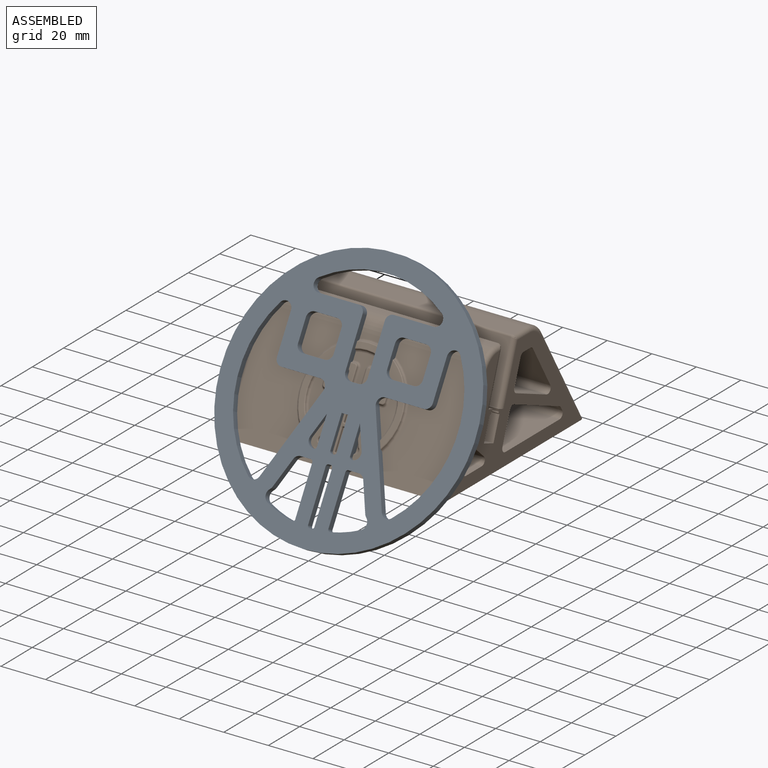
[diagram: assembled view]
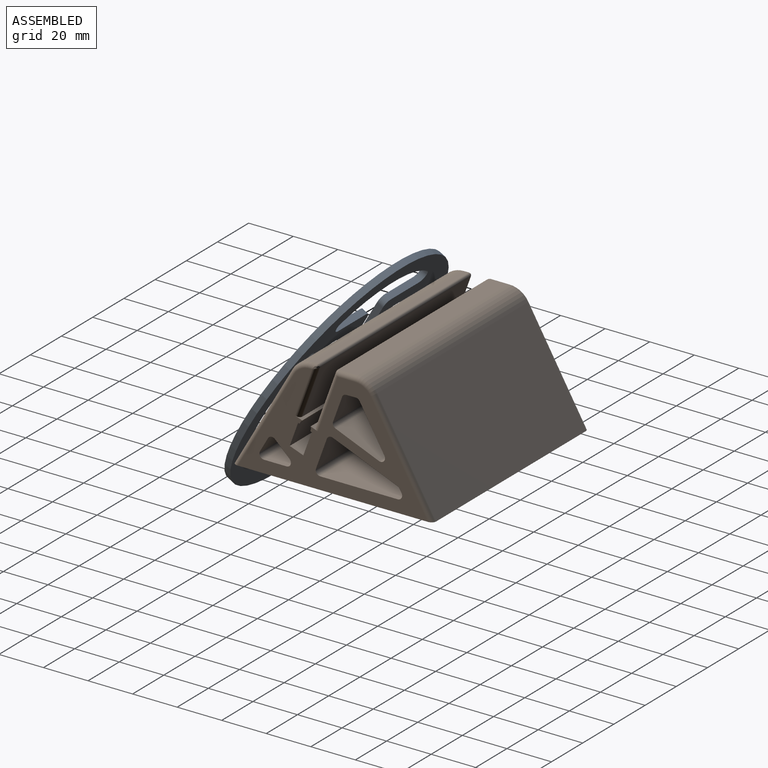
[diagram: assembled view, second angle]
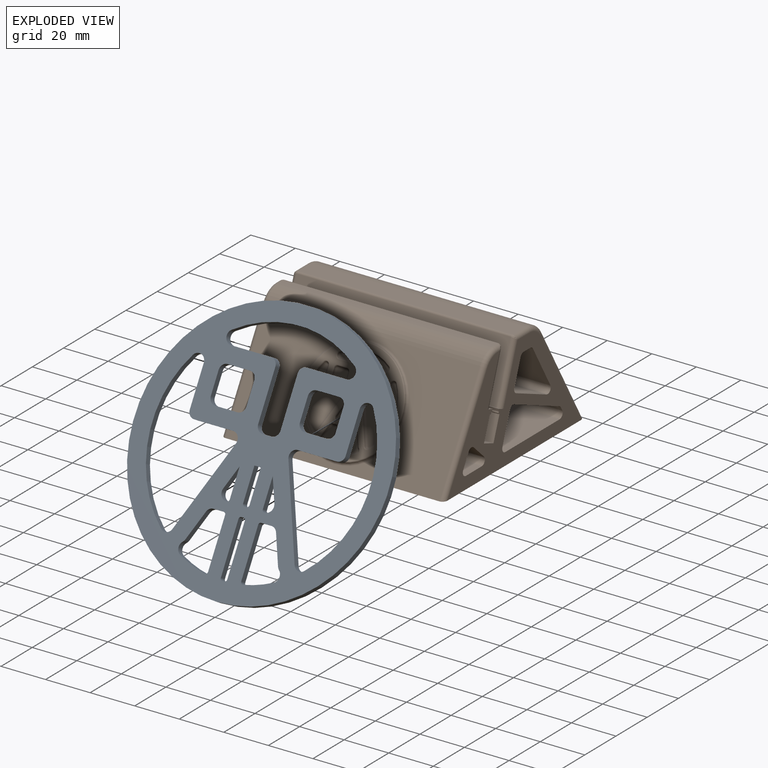
[diagram: exploded view]
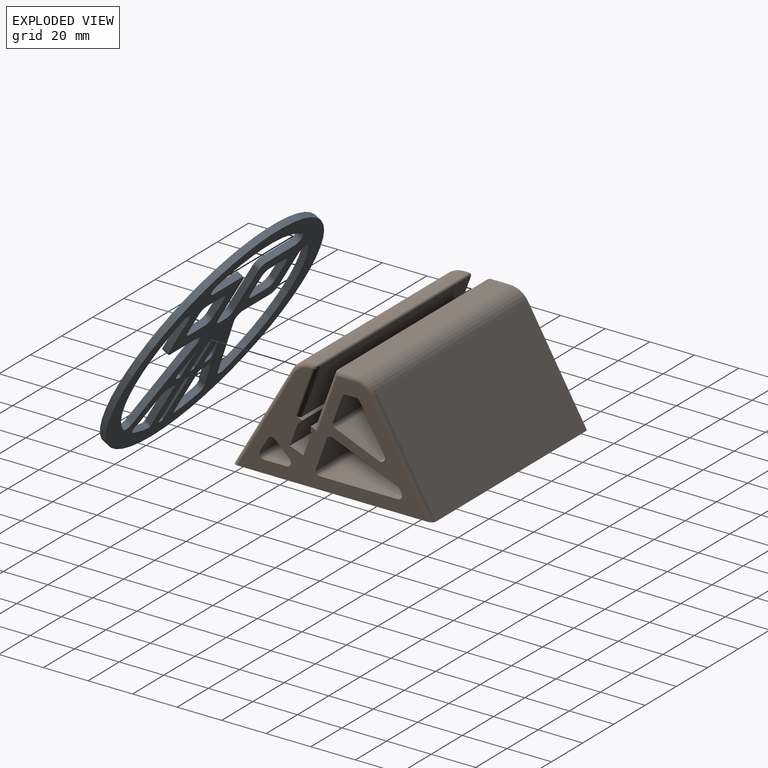
[diagram: exploded view, second angle]
ASSEMBLY  parts=2 mates=2
PART A: 89 faces, bbox 114x3x114 mm
  f0: cylinder r=3mm len=3mm, axis (0,-1,0), area 4.2mm2, adj f1,f86,f87,f88
  f1: cylinder r=3mm len=5.01mm, axis (0,-1,0), area 18mm2, adj f0,f2,f87,f88
  f2: cylinder r=49mm len=12.34mm, axis (0,-1,0), area 39mm2, adj f1,f3,f87,f88
  f3: cylinder r=1mm len=3mm, axis (0,-1,0), area 5.2mm2, adj f2,f4,f87,f88
  f4: plane 21.75x3mm, normal (-1,0,0), area 65.3mm2, adj f3,f5,f87,f88
  f5: cylinder r=1mm len=3mm, axis (0,-1,0), area 4.7mm2, adj f4,f6,f87,f88
  f6: plane 4.54x3mm, normal (0,0,-1), area 13.6mm2, adj f5,f7,f87,f88
  f7: cylinder r=3mm len=3mm, axis (0,-1,0), area 10.5mm2, adj f6,f86,f87,f88
  f8: plane 12.68x3mm, normal (-1,0,0), area 38mm2, adj f9,f75,f87,f88
  f9: plane 9.5x4.04mm, normal (0.92,0,-0.39), area 31mm2, adj f8,f10,f87,f88
  f10: cylinder r=3mm len=4.18mm, axis (0,-1,0), area 17.8mm2, adj f9,f11,f87,f88
  f11: plane 3x0.28mm, normal (0,0,1), area 0.9mm2, adj f10,f75,f87,f88
  f12: plane 10x3mm, normal (-1,0,0), area 30mm2, adj f13,f76,f87,f88
  f13: cylinder r=3mm len=3mm, axis (0,-1,0), area 14.1mm2, adj f12,f14,f87,f88
  f14: plane 10x3mm, normal (0,0,-1), area 30mm2, adj f13,f15,f87,f88
  f15: cylinder r=3mm len=3mm, axis (0,-1,0), area 14.1mm2, adj f14,f16,f87,f88
  f16: plane 10x3mm, normal (1,0,0), area 30mm2, adj f15,f17,f87,f88
  f17: cylinder r=3mm len=3mm, axis (0,-1,0), area 14.1mm2, adj f16,f18,f87,f88
  f18: plane 10x3mm, normal (0,0,1), area 30mm2, adj f17,f76,f87,f88
  f19: cylinder r=3mm len=3mm, axis (0,-1,0), area 14.1mm2, adj f20,f78,f87,f88
  f20: plane 10x3mm, normal (-1,0,0), area 30mm2, adj f19,f21,f87,f88
  f21: cylinder r=3mm len=3mm, axis (0,-1,0), area 14.1mm2, adj f20,f22,f87,f88
  f22: plane 10x3mm, normal (0,0,-1), area 30mm2, adj f21,f23,f87,f88
  f23: cylinder r=3mm len=3mm, axis (0,-1,0), area 14.1mm2, adj f22,f24,f87,f88
  f24: plane 10x3mm, normal (1,0,0), area 30mm2, adj f23,f25,f87,f88
  f25: cylinder r=3mm len=3mm, axis (0,-1,0), area 14.1mm2, adj f24,f78,f87,f88
  f26: plane 3x2.85mm, normal (0,0,-1), area 8.6mm2, adj f27,f79,f87,f88
  f27: plane 14.5x3mm, normal (1,0,0), area 43.5mm2, adj f26,f28,f87,f88
  f28: cylinder r=1mm len=3mm, axis (0,-1,0), area 4.7mm2, adj f27,f29,f87,f88
  f29: plane 3x0.85mm, normal (0,0,1), area 2.6mm2, adj f28,f30,f87,f88
  f30: cylinder r=1mm len=3mm, axis (0,-1,0), area 4.7mm2, adj f29,f79,f87,f88
  f31: plane 9.5x4.04mm, normal (-0.92,0,-0.39), area 31mm2, adj f32,f80,f87,f88
  f32: plane 12.68x3mm, normal (1,0,0), area 38mm2, adj f31,f33,f87,f88
  f33: cylinder r=1mm len=3mm, axis (0,-1,0), area 4.7mm2, adj f32,f34,f87,f88
  f34: plane 3x0.28mm, normal (0,0,1), area 0.9mm2, adj f33,f80,f87,f88
  f35: cylinder r=1mm len=3mm, axis (0,-1,0), area 4.7mm2, adj f36,f81,f87,f88
  f36: plane 22.5x3mm, normal (1,0,0), area 67.5mm2, adj f35,f37,f87,f88
  f37: cylinder r=1mm len=3mm, axis (0,-1,0), area 4.7mm2, adj f36,f38,f87,f88
  f38: cylinder r=49mm len=3mm, axis (0,-1,0), area 2.6mm2, adj f37,f39,f87,f88
  f39: cylinder r=1mm len=3mm, axis (0,-1,0), area 4.7mm2, adj f38,f40,f87,f88
  f40: plane 22.5x3mm, normal (-1,0,0), area 67.5mm2, adj f39,f41,f87,f88
  f41: cylinder r=1mm len=3mm, axis (0,-1,0), area 4.7mm2, adj f40,f81,f87,f88
  f42: cylinder r=3mm len=3mm, axis (0,-1,0), area 14.1mm2, adj f43,f82,f87,f88
  f43: plane 17.92x3mm, normal (0,0,1), area 53.8mm2, adj f42,f44,f87,f88
  f44: cylinder r=3mm len=5.48mm, axis (0,-1,0), area 22.9mm2, adj f43,f45,f87,f88
  f45: cylinder r=49mm len=55.23mm, axis (0,-1,0), area 176mm2, adj f44,f46,f87,f88
  f46: cylinder r=3mm len=5.48mm, axis (0,-1,0), area 22.9mm2, adj f45,f47,f87,f88
  f47: plane 17.92x3mm, normal (0,0,1), area 53.8mm2, adj f46,f48,f87,f88
  f48: cylinder r=3mm len=3mm, axis (0,-1,0), area 14.1mm2, adj f47,f49,f87,f88
  f49: plane 22x3mm, normal (1,0,0), area 66mm2, adj f48,f50,f87,f88
  f50: cylinder r=3mm len=3mm, axis (0,-1,0), area 14.1mm2, adj f49,f51,f87,f88
  f51: plane 4x3mm, normal (0,0,1), area 12mm2, adj f50,f52,f87,f88
  f52: cylinder r=3mm len=3mm, axis (0,-1,0), area 14.1mm2, adj f51,f82,f87,f88
  f53: cylinder r=1mm len=3mm, axis (0,-1,0), area 4.7mm2, adj f54,f83,f87,f88
  f54: plane 21.75x3mm, normal (1,0,0), area 65.3mm2, adj f53,f55,f87,f88
  f55: cylinder r=1mm len=3mm, axis (0,-1,0), area 5.2mm2, adj f54,f56,f87,f88
  f56: cylinder r=49mm len=12.34mm, axis (0,-1,0), area 39mm2, adj f55,f57,f87,f88
  f57: cylinder r=3mm len=5.01mm, axis (0,-1,0), area 18mm2, adj f56,f58,f87,f88
  f58: cylinder r=3mm len=3mm, axis (0,-1,0), area 4.2mm2, adj f57,f59,f87,f88
  f59: plane 11.85x5.04mm, normal (-0.92,0,-0.39), area 38.6mm2, adj f58,f60,f87,f88
  f60: cylinder r=3mm len=3mm, axis (0,-1,0), area 10.5mm2, adj f59,f83,f87,f88
  f61: cylinder r=3mm len=4.18mm, axis (0,-1,0), area 17.8mm2, adj f62,f84,f87,f88
  f62: plane 36.72x15.63mm, normal (0.92,0,0.39), area 119.7mm2, adj f61,f63,f87,f88
  f63: cylinder r=3mm len=4.73mm, axis (0,-1,0), area 17mm2, adj f62,f64,f87,f88
  f64: cylinder r=49mm len=64.6mm, axis (0,-1,0), area 213.8mm2, adj f63,f65,f87,f88
  f65: cylinder r=3mm len=5.48mm, axis (0,-1,0), area 22.9mm2, adj f64,f66,f87,f88
  f66: plane 17.92x3mm, normal (1,0,0), area 53.8mm2, adj f65,f67,f87,f88
  f67: cylinder r=3mm len=3mm, axis (0,-1,0), area 14.1mm2, adj f66,f84,f87,f88
  f68: plane 17.92x3mm, normal (-1,0,0), area 53.8mm2, adj f69,f85,f87,f88
  f69: cylinder r=3mm len=5.48mm, axis (0,-1,0), area 22.9mm2, adj f68,f70,f87,f88
  f70: cylinder r=49mm len=64.6mm, axis (0,-1,0), area 213.8mm2, adj f69,f71,f87,f88
  f71: cylinder r=3mm len=4.73mm, axis (0,-1,0), area 17mm2, adj f70,f72,f87,f88
  f72: plane 36.72x15.63mm, normal (-0.92,0,0.39), area 119.7mm2, adj f71,f73,f87,f88
  f73: cylinder r=3mm len=4.18mm, axis (0,-1,0), area 17.8mm2, adj f72,f74,f87,f88
  f74: plane 17.46x3mm, normal (0,0,-1), area 52.4mm2, adj f73,f85,f87,f88
  f75: cylinder r=1mm len=3mm, axis (0,-1,0), area 4.7mm2, adj f8,f11,f87,f88
  f76: cylinder r=3mm len=3mm, axis (0,-1,0), area 14.1mm2, adj f12,f18,f87,f88
  f77: cylinder r=57mm len=114mm, axis (0,-1,0), area 1074.4mm2, adj f87,f88
  f78: plane 10x3mm, normal (0,0,1), area 30mm2, adj f19,f25,f87,f88
  f79: plane 14.5x3mm, normal (-1,0,0), area 43.5mm2, adj f26,f30,f87,f88
  f80: cylinder r=3mm len=4.18mm, axis (0,-1,0), area 17.8mm2, adj f31,f34,f87,f88
  f81: plane 3x0.85mm, normal (0,0,-1), area 2.6mm2, adj f35,f41,f87,f88
  f82: plane 22x3mm, normal (-1,0,0), area 66mm2, adj f42,f52,f87,f88
  f83: plane 4.54x3mm, normal (0,0,-1), area 13.6mm2, adj f53,f60,f87,f88
  f84: plane 17.46x3mm, normal (0,0,-1), area 52.4mm2, adj f61,f67,f87,f88
  f85: cylinder r=3mm len=3mm, axis (0,-1,0), area 14.1mm2, adj f68,f74,f87,f88
  f86: plane 11.85x5.04mm, normal (0.92,0,-0.39), area 38.6mm2, adj f0,f7,f87,f88
  f87: plane 114x114mm, normal (0,1,0), area 5458.4mm2, adj f0,f1,f2,f3,f4,f5,f6,f7
  f88: plane 114x114mm, normal (0,-1,0), area 5458.4mm2, adj f0,f1,f2,f3,f4,f5,f6,f7
PART B: 284 faces, bbox 100.5x91x52.3 mm
  f0: plane 61x0.39mm, normal (0,0.94,-0.34), area 25.2mm2, adj f3,f20,f23,f279
  f1: plane 61x0.45mm, normal (0,-0.94,0.34), area 29.1mm2, adj f3,f20,f24,f278
  f2: plane 100x10.15mm, normal (0,0.34,0.94), area 439.4mm2, adj f3,f4,f14,f15,f20,f21,f22,f29
  f3: plane 85.37x48mm, normal (1,0,0), area 1595mm2, adj f0,f1,f2,f9,f16,f17,f18,f19
  f4: plane 96x22.15mm, normal (0,0.94,-0.34), area 2262.9mm2, adj f2,f5,f34,f44
  f5: cylinder r=1mm len=96mm, axis (-1,0,0), area 184.3mm2, adj f4,f6,f33,f43
  f6: plane 96x2.48mm, normal (0,0,1), area 238.2mm2, adj f5,f7,f32,f42
  f7: cylinder r=10mm len=96mm, axis (-1,0,0), area 1005.3mm2, adj f6,f8,f31,f41
  f8: plane 96x45mm, normal (0,-0.87,0.5), area 3208.8mm2, adj f7,f9,f30,f40,f104
  f9: plane 100.49x90.49mm, normal (0,0,-1), area 8996mm2, adj f3,f8,f10,f15,f25,f30,f35,f40
  f10: plane 96x45.04mm, normal (0,0.86,0.5), area 5008.3mm2, adj f9,f11,f25,f35
  f11: cylinder r=10mm len=96mm, axis (-1,0,0), area 1000.3mm2, adj f10,f12,f26,f36
  f12: plane 96x8.56mm, normal (0,0,1), area 821.8mm2, adj f11,f13,f27,f37
  f13: cylinder r=1mm len=96mm, axis (-1,0,0), area 117.3mm2, adj f12,f14,f28,f38
  f14: plane 96x25.16mm, normal (0,-0.94,0.34), area 2570.4mm2, adj f2,f13,f29,f39
  f15: plane 85.37x48mm, normal (-1,0,0), area 1676.1mm2, adj f2,f9,f25,f26,f27,f29,f30,f31
  f16: plane 65x6.11mm, normal (0,-0.34,-0.94), area 53.5mm2, adj f3,f17,f19,f45,f278,f279,f280
  f17: plane 65x10.34mm, normal (0,0.94,-0.34), area 715mm2, adj f3,f16,f18,f45
  f18: plane 65x6.11mm, normal (0,0.34,0.94), area 422.5mm2, adj f3,f17,f19,f45
  f19: plane 65x10.34mm, normal (0,-0.94,0.34), area 715mm2, adj f3,f16,f18,f45
  f20: plane 4.87x2.95mm, normal (1,0,0), area 7mm2, adj f0,f1,f2,f21,f22,f23,f24,f280
  f21: plane 61x0.82mm, normal (0,0.71,-0.71), area 70.4mm2, adj f2,f3,f20,f23
  f22: plane 61x1.09mm, normal (0,-0.99,-0.11), area 66.8mm2, adj f2,f3,f20,f24
  f23: cylinder r=0.1mm len=61mm, axis (1,0,0), area 2.7mm2, adj f0,f3,f20,f21
  f24: cylinder r=0.1mm len=61mm, axis (-1,0,0), area 2.8mm2, adj f1,f3,f20,f22
  f25: cylinder r=2mm len=46.05mm, axis (0,-0.5,0.86), area 162.1mm2, adj f9,f10,f15,f26
  f26: torus R=8mm, axis (1,0,0), area 30.4mm2, adj f11,f15,f25,f27
  f27: cylinder r=2mm len=8.56mm, axis (0,-1,0), area 25.8mm2, adj f12,f15,f26,f28
  f28: bspline ~2.08x2mm, area 1.6mm2, adj f13,f27,f29
  f29: cylinder r=2mm len=25.84mm, axis (0,-0.34,-0.94), area 83mm2, adj f2,f14,f15,f28
  f30: cylinder r=2mm len=46mm, axis (0,-0.5,-0.87), area 161.4mm2, adj f8,f9,f15,f31
  f31: torus R=8mm, axis (1,0,0), area 30.5mm2, adj f7,f15,f30,f32
  f32: cylinder r=2mm len=2.48mm, axis (0,-1,0), area 5.6mm2, adj f6,f15,f31,f33
  f33: bspline ~2.86x2.13mm, area 2.8mm2, adj f5,f32,f34
  f34: cylinder r=2mm len=22.83mm, axis (0,0.34,0.94), area 71.8mm2, adj f2,f4,f15,f33
  f35: cylinder r=2mm len=46.05mm, axis (0,0.5,-0.86), area 162.1mm2, adj f3,f9,f10,f36
  f36: torus R=8mm, axis (1,0,0), area 30.4mm2, adj f3,f11,f35,f37
  f37: cylinder r=2mm len=8.56mm, axis (0,1,0), area 25.8mm2, adj f3,f12,f36,f38
  f38: bspline ~2.08x2mm, area 1.6mm2, adj f13,f37,f39
  f39: cylinder r=2mm len=25.84mm, axis (0,0.34,0.94), area 83mm2, adj f2,f3,f14,f38
  f40: cylinder r=2mm len=46mm, axis (0,0.5,0.87), area 161.4mm2, adj f3,f8,f9,f41
  f41: torus R=8mm, axis (1,0,0), area 30.5mm2, adj f3,f7,f40,f42
  f42: cylinder r=2mm len=2.48mm, axis (0,1,0), area 5.6mm2, adj f3,f6,f41,f43
  f43: bspline ~2.86x2.13mm, area 2.8mm2, adj f5,f42,f44
  f44: cylinder r=2mm len=22.83mm, axis (0,-0.34,-0.94), area 71.8mm2, adj f2,f3,f4,f43
  f45: plane 12.56x9.87mm, normal (1,0,0), area 71.5mm2, adj f16,f17,f18,f19
  f46: plane 100x4.25mm, normal (0,0,-1), area 424.8mm2, adj f3,f15,f64,f67
  f47: plane 100x11.12mm, normal (0,0.94,-0.34), area 1183.1mm2, adj f3,f15,f66,f67
  f48: plane 100x19.42mm, normal (0,0.38,0.93), area 2098.1mm2, adj f3,f15,f65,f66
  f49: plane 100x19.05mm, normal (0,-0.86,-0.5), area 2206.2mm2, adj f3,f15,f64,f65
  f50: plane 100x29.06mm, normal (0,-0.38,-0.93), area 3138.7mm2, adj f3,f15,f60,f63
  f51: plane 100x13.33mm, normal (0,0.94,-0.34), area 1418.4mm2, adj f3,f15,f60,f61
  f52: plane 100x34.76mm, normal (0,0,1), area 3476.4mm2, adj f3,f15,f61,f62
  f53: plane 100x1.46mm, normal (0,-0.86,-0.5), area 169.4mm2, adj f3,f15,f62,f63
  f54: plane 100x6.55mm, normal (0,-0.69,-0.73), area 902.8mm2, adj f3,f15,f57,f59
  f55: plane 100x6.21mm, normal (0,0.87,-0.5), area 717mm2, adj f3,f15,f58,f59
  f56: plane 100x10.14mm, normal (0,0,1), area 1013.9mm2, adj f3,f15,f57,f58
  f57: cylinder r=2mm len=100mm, axis (-1,0,0), area 476.6mm2, adj f3,f15,f54,f56
  f58: cylinder r=2mm len=100mm, axis (-1,0,0), area 418.9mm2, adj f3,f15,f55,f56
  f59: cylinder r=2mm len=100mm, axis (-1,0,0), area 361.1mm2, adj f3,f15,f54,f55
  f60: cylinder r=2mm len=100mm, axis (-1,0,0), area 321.9mm2, adj f3,f15,f50,f51
  f61: cylinder r=2mm len=100mm, axis (-1,0,0), area 384mm2, adj f3,f15,f51,f52
  f62: cylinder r=2mm len=100mm, axis (-1,0,0), area 419.9mm2, adj f3,f15,f52,f53
  f63: cylinder r=2mm len=100mm, axis (-1,0,0), area 130.9mm2, adj f3,f15,f50,f53
  f64: cylinder r=2mm len=100mm, axis (-1,0,0), area 208.4mm2, adj f3,f15,f46,f49
  f65: cylinder r=2mm len=100mm, axis (-1,0,0), area 497.4mm2, adj f3,f15,f48,f49
  f66: cylinder r=2mm len=100mm, axis (-1,0,0), area 306.4mm2, adj f3,f15,f47,f48
  f67: cylinder r=2mm len=100mm, axis (-1,0,0), area 244.3mm2, adj f3,f15,f46,f47
  f68: cylinder r=0.4mm len=0.45mm, axis (0,-0.87,0.5), area 0.1mm2, adj f69,f91,f167,f194
  f69: plane 0.17x0.11mm, normal (0,0.5,0.87), area 0mm2, adj f68,f80,f168,f195
  f70: plane 5.12x3.07mm, normal (-1,0,0), area 1.2mm2, adj f71,f88,f185,f197
  f71: cylinder r=0.4mm len=0.45mm, axis (0,-0.87,0.5), area 0.1mm2, adj f70,f72,f183,f196
  f72: plane 0.34x0.17mm, normal (0,0.5,0.87), area 0.1mm2, adj f71,f89,f181,f198
  f73: cylinder r=1.2mm len=1.55mm, axis (0,-0.87,0.5), area 0.5mm2, adj f74,f85,f189,f202
  f74: plane 0.17x0.11mm, normal (0,0.5,0.87), area 0mm2, adj f73,f86,f187,f203
  f75: plane 0.34x0.17mm, normal (0,-0.5,-0.87), area 0.1mm2, adj f76,f82,f176,f236
  f76: cylinder r=0.4mm len=0.45mm, axis (0,-0.87,0.5), area 0.1mm2, adj f75,f77,f178,f238
  f77: plane 7.89x4.67mm, normal (-1,0,0), area 1.8mm2, adj f76,f78,f179,f240
  f78: cylinder r=0.4mm len=0.45mm, axis (0,-0.87,0.5), area 0.1mm2, adj f77,f79,f177,f242
  f79: cylinder r=19.6mm len=0.35mm, axis (0,-0.87,0.5), area 0.1mm2, adj f78,f83,f175,f243
  f80: cylinder r=1.2mm len=1.55mm, axis (0,-0.87,0.5), area 0.5mm2, adj f69,f92,f170,f193
  f81: plane 44.66x38.68mm, normal (0,-0.87,0.5), area 622.5mm2, adj f191,f192,f193,f194,f195,f196,f197,f198
  f82: cylinder r=0.4mm len=0.45mm, axis (0,-0.87,0.5), area 0.1mm2, adj f75,f84,f174,f237
  f83: cylinder r=0.4mm len=0.45mm, axis (0,-0.87,0.5), area 0.1mm2, adj f79,f84,f173,f241
  f84: plane 7.89x4.67mm, normal (1,0,0), area 1.8mm2, adj f82,f83,f172,f239
  f85: plane 3.39x2.07mm, normal (-0.92,-0.2,-0.34), area 0.8mm2, adj f73,f87,f190,f204
  f86: cylinder r=0.4mm len=0.45mm, axis (0,-0.87,0.5), area 0.1mm2, adj f74,f87,f186,f205
  f87: plane 4.49x2.71mm, normal (1,0,0), area 1mm2, adj f85,f86,f188,f206
  f88: plane 1.14x0.17mm, normal (0,-0.5,-0.87), area 0.2mm2, adj f70,f90,f184,f199
  f89: cylinder r=0.4mm len=0.45mm, axis (0,-0.87,0.5), area 0.1mm2, adj f72,f90,f180,f200
  f90: plane 5.12x3.07mm, normal (1,0,0), area 1.2mm2, adj f88,f89,f182,f201
  f91: plane 4.49x2.71mm, normal (-1,0,0), area 1mm2, adj f68,f92,f169,f192
  f92: plane 3.39x2.07mm, normal (0.92,-0.2,-0.34), area 0.8mm2, adj f80,f91,f171,f191
  f93: plane 2.18x1.26mm, normal (0,-0.87,0.5), area 1.1mm2, adj f168,f169,f170,f171
  f94: plane 4.4x3.81mm, normal (0,-0.87,0.5), area 19.3mm2, adj f150,f151,f152,f153,f154,f155,f156,f157
  f95: plane 4.4x3.81mm, normal (0,-0.87,0.5), area 19.3mm2, adj f105,f106,f107,f108,f109,f110,f111,f112
  f96: plane 4.5x2.6mm, normal (0,-0.87,0.5), area 0.7mm2, adj f181,f182,f184,f185
  f97: plane 2.18x1.26mm, normal (0,-0.87,0.5), area 1.1mm2, adj f187,f188,f189,f190
  f98: plane 7.62x4.4mm, normal (0,-0.87,0.5), area 1.2mm2, adj f172,f175,f176,f179
  f99: plane 21.14x12.82mm, normal (0,-0.87,0.5), area 78.2mm2, adj f138,f139,f140,f141,f142,f143,f144,f145
  f100: plane 6.38x4.09mm, normal (0,-0.87,0.5), area 19mm2, adj f129,f130,f131,f133,f134,f135,f137
  f101: plane 21.36x12.99mm, normal (0,-0.87,0.5), area 145.5mm2, adj f121,f122,f123,f124,f125,f126,f127,f128
  f102: plane 21.36x12.99mm, normal (0,-0.87,0.5), area 145.5mm2, adj f113,f114,f115,f116,f117,f118,f119,f120
  f103: plane 6.38x4.09mm, normal (0,-0.87,0.5), area 19mm2, adj f158,f159,f160,f161,f162,f163,f166
  f104: torus R=23.8mm, axis (0,-0.87,0.5), area 199.8mm2, adj f8,f261
  f105: cylinder r=1mm len=3.86mm, axis (0,0.5,0.87), area 5.5mm2, adj f95,f106,f107,f262
  f106: torus R=0.2mm, axis (0,-0.87,0.5), area 1.7mm2, adj f95,f105,f108,f264
  f107: torus R=0.2mm, axis (0,-0.87,0.5), area 1.7mm2, adj f95,f105,f109,f263
  f108: cylinder r=1mm len=4mm, axis (-1,0,0), area 5.5mm2, adj f95,f106,f110,f266
  f109: cylinder r=1mm len=4mm, axis (1,0,0), area 5.5mm2, adj f95,f107,f111,f265
  f110: torus R=0.2mm, axis (0,-0.87,0.5), area 1.7mm2, adj f95,f108,f112,f268
  f111: torus R=0.2mm, axis (0,-0.87,0.5), area 1.7mm2, adj f95,f109,f112,f267
  f112: cylinder r=1mm len=3.86mm, axis (0,-0.5,-0.87), area 5.5mm2, adj f95,f110,f111,f269
  f113: cylinder r=1mm len=6.61mm, axis (0,-0.5,-0.87), area 9.8mm2, adj f102,f114,f115,f275
  f114: torus R=0.2mm, axis (0,-0.87,0.5), area 2.7mm2, adj f102,f113,f116,f277
  f115: torus R=2.2mm, axis (0,-0.87,0.5), area 3.5mm2, adj f102,f113,f117,f273
  f116: torus R=18.6mm, axis (0,-0.87,0.5), area 38.2mm2, adj f102,f114,f118,f276
  f117: cylinder r=1mm len=6.99mm, axis (1,0,0), area 9.6mm2, adj f102,f115,f119,f271
  f118: torus R=0.2mm, axis (0,-0.87,0.5), area 2mm2, adj f102,f116,f120,f274
  f119: torus R=0.2mm, axis (0,-0.87,0.5), area 2.1mm2, adj f102,f117,f120,f270
  f120: cylinder r=1mm len=12.89mm, axis (-0.39,-0.46,-0.8), area 21.9mm2, adj f102,f118,f119,f272
  f121: torus R=0.2mm, axis (0,-0.87,0.5), area 2.7mm2, adj f101,f122,f123,f213
  f122: cylinder r=1mm len=6.61mm, axis (0,0.5,0.87), area 9.8mm2, adj f101,f121,f124,f211
  f123: torus R=18.6mm, axis (0,-0.87,0.5), area 38.2mm2, adj f101,f121,f125,f214
  f124: torus R=2.2mm, axis (0,-0.87,0.5), area 3.5mm2, adj f101,f122,f126,f209
  f125: torus R=0.2mm, axis (0,-0.87,0.5), area 2mm2, adj f101,f123,f127,f212
  f126: cylinder r=1mm len=6.99mm, axis (1,0,0), area 9.6mm2, adj f101,f124,f128,f207
  f127: cylinder r=1mm len=12.89mm, axis (-0.39,0.46,0.8), area 21.9mm2, adj f101,f125,f128,f210
  f128: torus R=0.2mm, axis (0,-0.87,0.5), area 2.1mm2, adj f101,f126,f127,f208
  f129: torus R=0.2mm, axis (0,-0.87,0.5), area 2.1mm2, adj f100,f130,f131,f222
  f130: torus R=18.6mm, axis (0,-0.87,0.5), area 6.5mm2, adj f100,f129,f132,f223
  f131: torus R=2.2mm, axis (0,-0.87,0.5), area 1mm2, adj f100,f129,f133,f220
  f132: bspline ~1.35x1mm, area 0.4mm2, adj f130,f134,f221
  f133: cylinder r=1mm len=4.84mm, axis (0.39,-0.46,-0.8), area 7.1mm2, adj f100,f131,f135,f218
  f134: cylinder r=1mm len=7.91mm, axis (0,0.5,0.87), area 11mm2, adj f100,f132,f136,f219
  f135: torus R=0.2mm, axis (0,-0.87,0.5), area 1.3mm2, adj f100,f133,f137,f216
  f136: bspline ~1.27x0.99mm, area 0.3mm2, adj f134,f137,f217
  f137: cylinder r=1mm len=1.8mm, axis (1,0,0), area 2.1mm2, adj f100,f135,f136,f215
  f138: cylinder r=1mm len=8.02mm, axis (0,-0.5,-0.87), area 12.1mm2, adj f99,f139,f140,f227
  f139: torus R=2.2mm, axis (0,-0.87,0.5), area 3.5mm2, adj f99,f138,f141,f229
  f140: torus R=0.2mm, axis (0,-0.87,0.5), area 1.7mm2, adj f99,f138,f142,f225
  f141: cylinder r=1mm len=7.17mm, axis (-1,0,0), area 9.8mm2, adj f99,f139,f143,f231
  f142: cylinder r=1mm len=1.6mm, axis (-1,0,0), area 2.2mm2, adj f99,f140,f144,f224
  f143: torus R=0.2mm, axis (0,-0.87,0.5), area 2.7mm2, adj f99,f141,f145,f233
  f144: torus R=0.2mm, axis (0,-0.87,0.5), area 1.7mm2, adj f99,f142,f146,f226
  f145: torus R=18.6mm, axis (0,-0.87,0.5), area 31.5mm2, adj f99,f143,f147,f235
  f146: cylinder r=1mm len=8.02mm, axis (0,0.5,0.87), area 12.1mm2, adj f99,f144,f148,f228
  f147: torus R=0.2mm, axis (0,-0.87,0.5), area 2.7mm2, adj f99,f145,f149,f234
  f148: torus R=2.2mm, axis (0,-0.87,0.5), area 3.5mm2, adj f99,f146,f149,f230
  f149: cylinder r=1mm len=7.17mm, axis (-1,0,0), area 9.8mm2, adj f99,f147,f148,f232
  f150: cylinder r=1mm len=4mm, axis (-1,0,0), area 5.5mm2, adj f94,f151,f152,f254
  f151: torus R=0.2mm, axis (0,-0.87,0.5), area 1.7mm2, adj f94,f150,f153,f256
  f152: torus R=0.2mm, axis (0,-0.87,0.5), area 1.7mm2, adj f94,f150,f154,f253
  f153: cylinder r=1mm len=3.86mm, axis (0,-0.5,-0.87), area 5.5mm2, adj f94,f151,f155,f258
  f154: cylinder r=1mm len=3.86mm, axis (0,0.5,0.87), area 5.5mm2, adj f94,f152,f156,f255
  f155: torus R=0.2mm, axis (0,-0.87,0.5), area 1.7mm2, adj f94,f153,f157,f260
  f156: torus R=0.2mm, axis (0,-0.87,0.5), area 1.7mm2, adj f94,f154,f157,f257
  f157: cylinder r=1mm len=4mm, axis (1,0,0), area 5.5mm2, adj f94,f155,f156,f259
  f158: torus R=2.2mm, axis (0,-0.87,0.5), area 1mm2, adj f103,f159,f160,f246
  f159: cylinder r=1mm len=4.84mm, axis (0.39,0.46,0.8), area 7.1mm2, adj f103,f158,f161,f248
  f160: torus R=0.2mm, axis (0,-0.87,0.5), area 2.1mm2, adj f103,f158,f162,f244
  f161: torus R=0.2mm, axis (0,-0.87,0.5), area 1.3mm2, adj f103,f159,f163,f250
  f162: torus R=18.6mm, axis (0,-0.87,0.5), area 6.5mm2, adj f103,f160,f164,f245
  f163: cylinder r=1mm len=1.8mm, axis (1,0,0), area 2.1mm2, adj f103,f161,f165,f252
  f164: bspline ~1.35x1mm, area 0.4mm2, adj f162,f166,f247
  f165: bspline ~1.27x0.99mm, area 0.3mm2, adj f163,f166,f251
  f166: cylinder r=1mm len=7.91mm, axis (0,-0.5,-0.87), area 11mm2, adj f103,f164,f165,f249
  f167: bspline ~0.78x0.5mm, area 0.2mm2, adj f68,f168,f169
  f168: cylinder r=0.5mm len=0.68mm, axis (-1,0,0), area 0.1mm2, adj f69,f93,f167,f170
  f169: cylinder r=0.5mm len=4.64mm, axis (0,-0.5,-0.87), area 3.2mm2, adj f91,f93,f167,f171
  f170: torus R=0.7mm, axis (0,-0.87,0.5), area 1.6mm2, adj f80,f93,f168,f171
  f171: cylinder r=0.5mm len=3.71mm, axis (0.39,0.46,0.8), area 2.5mm2, adj f92,f93,f169,f170
  f172: cylinder r=0.5mm len=8.04mm, axis (0,0.5,0.87), area 7mm2, adj f84,f98,f173,f174
  f173: bspline ~0.81x0.5mm, area 0.2mm2, adj f83,f172,f175
  f174: bspline ~0.73x0.53mm, area 0.2mm2, adj f82,f172,f176
  f175: torus R=19.1mm, axis (0,-0.87,0.5), area 0.2mm2, adj f79,f98,f173,f177
  f176: cylinder r=0.5mm len=0.68mm, axis (1,0,0), area 0.2mm2, adj f75,f98,f174,f178
  f177: bspline ~0.81x0.5mm, area 0.2mm2, adj f78,f175,f179
  f178: bspline ~0.73x0.53mm, area 0.2mm2, adj f76,f176,f179
  f179: cylinder r=0.5mm len=8.04mm, axis (0,-0.5,-0.87), area 7mm2, adj f77,f98,f177,f178
  f180: bspline ~0.78x0.5mm, area 0.2mm2, adj f89,f181,f182
  f181: cylinder r=0.5mm len=0.68mm, axis (-1,0,0), area 0.2mm2, adj f72,f96,f180,f183
  f182: cylinder r=0.5mm len=5.27mm, axis (0,0.5,0.87), area 4.3mm2, adj f90,f96,f180,f184
  f183: bspline ~0.78x0.5mm, area 0.2mm2, adj f71,f181,f185
  f184: cylinder r=0.5mm len=1.14mm, axis (1,0,0), area 0.6mm2, adj f88,f96,f182,f185
  f185: cylinder r=0.5mm len=5.27mm, axis (0,-0.5,-0.87), area 4.3mm2, adj f70,f96,f183,f184
  f186: bspline ~0.78x0.5mm, area 0.2mm2, adj f86,f187,f188
  f187: cylinder r=0.5mm len=0.68mm, axis (-1,0,0), area 0.1mm2, adj f74,f97,f186,f189
  f188: cylinder r=0.5mm len=4.64mm, axis (0,0.5,0.87), area 3.2mm2, adj f87,f97,f186,f190
  f189: torus R=0.7mm, axis (0,-0.87,0.5), area 1.6mm2, adj f73,f97,f187,f190
  f190: cylinder r=0.5mm len=3.71mm, axis (0.39,-0.46,-0.8), area 2.5mm2, adj f85,f97,f188,f189
  f191: cylinder r=0.5mm len=5.66mm, axis (-0.39,-0.46,-0.8), area 3.9mm2, adj f81,f92,f192,f193
  f192: cylinder r=0.5mm len=6.76mm, axis (0,0.5,0.87), area 4.7mm2, adj f81,f91,f191,f194
  f193: torus R=1.7mm, axis (0,0.87,-0.5), area 2.1mm2, adj f80,f81,f191,f195
  f194: torus R=0.9mm, axis (0,0.87,-0.5), area 0.7mm2, adj f68,f81,f192,f195
  f195: cylinder r=0.5mm len=0.68mm, axis (1,0,0), area 0.1mm2, adj f69,f81,f193,f194
  f196: torus R=0.9mm, axis (0,0.87,-0.5), area 0.7mm2, adj f71,f81,f197,f198
  f197: cylinder r=0.5mm len=5.71mm, axis (0,0.5,0.87), area 4.8mm2, adj f70,f81,f196,f199
  f198: cylinder r=0.5mm len=0.68mm, axis (1,0,0), area 0.3mm2, adj f72,f81,f196,f200
  f199: cylinder r=0.5mm len=2.14mm, axis (-1,0,0), area 1.3mm2, adj f81,f88,f197,f201
  f200: torus R=0.9mm, axis (0,0.87,-0.5), area 0.7mm2, adj f81,f89,f198,f201
  f201: cylinder r=0.5mm len=5.71mm, axis (0,-0.5,-0.87), area 4.8mm2, adj f81,f90,f199,f200
  f202: torus R=1.7mm, axis (0,0.87,-0.5), area 2.1mm2, adj f73,f81,f203,f204
  f203: cylinder r=0.5mm len=0.68mm, axis (1,0,0), area 0.1mm2, adj f74,f81,f202,f205
  f204: cylinder r=0.5mm len=5.66mm, axis (-0.39,0.46,0.8), area 3.9mm2, adj f81,f85,f202,f206
  f205: torus R=0.9mm, axis (0,0.87,-0.5), area 0.7mm2, adj f81,f86,f203,f206
  f206: cylinder r=0.5mm len=6.76mm, axis (0,-0.5,-0.87), area 4.7mm2, adj f81,f87,f204,f205
  f207: cylinder r=0.5mm len=6.99mm, axis (1,0,0), area 4.8mm2, adj f81,f126,f208,f209
  f208: torus R=1.67mm, axis (0,0.87,-0.5), area 1.9mm2, adj f81,f128,f207,f210
  f209: torus R=0.73mm, axis (0,-0.87,0.5), area 1.1mm2, adj f81,f124,f207,f211
  f210: cylinder r=0.5mm len=12.81mm, axis (-0.39,0.46,0.8), area 10.9mm2, adj f81,f127,f208,f212
  f211: cylinder r=0.5mm len=6.41mm, axis (0,0.5,0.87), area 4.9mm2, adj f81,f122,f209,f213
  f212: torus R=1.67mm, axis (0,0.87,-0.5), area 1.8mm2, adj f81,f125,f210,f214
  f213: torus R=1.67mm, axis (0,0.87,-0.5), area 2.4mm2, adj f81,f121,f211,f214
  f214: torus R=20.07mm, axis (0,0.87,-0.5), area 19.7mm2, adj f81,f123,f212,f213
  f215: cylinder r=0.5mm len=1.8mm, axis (1,0,0), area 1.2mm2, adj f81,f137,f216,f217
  f216: torus R=1.67mm, axis (0,0.87,-0.5), area 1.1mm2, adj f81,f135,f215,f218
  f217: bspline ~1.04x1.01mm, area 0.6mm2, adj f81,f136,f215,f219
  f218: cylinder r=0.5mm len=4.47mm, axis (0.39,-0.46,-0.8), area 3.5mm2, adj f81,f133,f216,f220
  f219: cylinder r=0.5mm len=7.71mm, axis (0,0.5,0.87), area 5.9mm2, adj f81,f134,f217,f221
  f220: torus R=0.73mm, axis (0,-0.87,0.5), area 0.3mm2, adj f81,f131,f218,f222
  f221: bspline ~1.2x0.93mm, area 0.7mm2, adj f81,f132,f219,f223
  f222: torus R=1.67mm, axis (0,0.87,-0.5), area 1.9mm2, adj f81,f129,f220,f223
  f223: torus R=20.07mm, axis (0,0.87,-0.5), area 3.6mm2, adj f81,f130,f221,f222
  f224: cylinder r=0.5mm len=1.6mm, axis (-1,0,0), area 1.1mm2, adj f81,f142,f225,f226
  f225: torus R=1.67mm, axis (0,0.87,-0.5), area 1.5mm2, adj f81,f140,f224,f227
  f226: torus R=1.67mm, axis (0,0.87,-0.5), area 1.5mm2, adj f81,f144,f224,f228
  f227: cylinder r=0.5mm len=7.82mm, axis (0,-0.5,-0.87), area 6mm2, adj f81,f138,f225,f229
  f228: cylinder r=0.5mm len=7.82mm, axis (0,0.5,0.87), area 6mm2, adj f81,f146,f226,f230
  f229: torus R=0.73mm, axis (0,-0.87,0.5), area 1.1mm2, adj f81,f139,f227,f231
  f230: torus R=0.73mm, axis (0,-0.87,0.5), area 1.1mm2, adj f81,f148,f228,f232
  f231: cylinder r=0.5mm len=7.17mm, axis (-1,0,0), area 4.9mm2, adj f81,f141,f229,f233
  f232: cylinder r=0.5mm len=7.17mm, axis (-1,0,0), area 4.9mm2, adj f81,f149,f230,f234
  f233: torus R=1.67mm, axis (0,0.87,-0.5), area 2.4mm2, adj f81,f143,f231,f235
  f234: torus R=1.67mm, axis (0,0.87,-0.5), area 2.4mm2, adj f81,f147,f232,f235
  f235: torus R=20.07mm, axis (0,0.87,-0.5), area 16.2mm2, adj f81,f145,f233,f234
  f236: cylinder r=0.5mm len=0.68mm, axis (-1,0,0), area 0.3mm2, adj f75,f81,f237,f238
  f237: torus R=0.9mm, axis (0,0.87,-0.5), area 0.7mm2, adj f81,f82,f236,f239
  f238: torus R=0.9mm, axis (0,0.87,-0.5), area 0.7mm2, adj f76,f81,f236,f240
  f239: cylinder r=0.5mm len=8.04mm, axis (0,-0.5,-0.87), area 7.1mm2, adj f81,f84,f237,f241
  f240: cylinder r=0.5mm len=8.04mm, axis (0,0.5,0.87), area 7.1mm2, adj f77,f81,f238,f242
  f241: torus R=0.9mm, axis (0,0.87,-0.5), area 0.7mm2, adj f81,f83,f239,f243
  f242: torus R=0.9mm, axis (0,0.87,-0.5), area 0.7mm2, adj f78,f81,f240,f243
  f243: torus R=20.1mm, axis (0,0.87,-0.5), area 0.3mm2, adj f79,f81,f241,f242
  f244: torus R=1.67mm, axis (0,0.87,-0.5), area 1.9mm2, adj f81,f160,f245,f246
  f245: torus R=20.07mm, axis (0,0.87,-0.5), area 3.6mm2, adj f81,f162,f244,f247
  f246: torus R=0.73mm, axis (0,-0.87,0.5), area 0.3mm2, adj f81,f158,f244,f248
  f247: bspline ~1.2x0.89mm, area 0.7mm2, adj f81,f164,f245,f249
  f248: cylinder r=0.5mm len=4.47mm, axis (0.39,0.46,0.8), area 3.5mm2, adj f81,f159,f246,f250
  f249: cylinder r=0.5mm len=7.71mm, axis (0,-0.5,-0.87), area 5.9mm2, adj f81,f166,f247,f251
  f250: torus R=1.67mm, axis (0,0.87,-0.5), area 1.1mm2, adj f81,f161,f248,f252
  f251: bspline ~1.03x0.98mm, area 0.6mm2, adj f81,f165,f249,f252
  f252: cylinder r=0.5mm len=1.8mm, axis (1,0,0), area 1.2mm2, adj f81,f163,f250,f251
  f253: torus R=1.67mm, axis (0,0.87,-0.5), area 1.5mm2, adj f81,f152,f254,f255
  f254: cylinder r=0.5mm len=4mm, axis (-1,0,0), area 2.7mm2, adj f81,f150,f253,f256
  f255: cylinder r=0.5mm len=3.66mm, axis (0,0.5,0.87), area 2.7mm2, adj f81,f154,f253,f257
  f256: torus R=1.67mm, axis (0,0.87,-0.5), area 1.5mm2, adj f81,f151,f254,f258
  f257: torus R=1.67mm, axis (0,0.87,-0.5), area 1.5mm2, adj f81,f156,f255,f259
  f258: cylinder r=0.5mm len=3.66mm, axis (0,-0.5,-0.87), area 2.7mm2, adj f81,f153,f256,f260
  f259: cylinder r=0.5mm len=4mm, axis (1,0,0), area 2.7mm2, adj f81,f157,f257,f260
  f260: torus R=1.67mm, axis (0,0.87,-0.5), area 1.5mm2, adj f81,f155,f258,f259
  f261: torus R=22.33mm, axis (0,-0.87,0.5), area 97.3mm2, adj f81,f104
  f262: cylinder r=0.5mm len=3.66mm, axis (0,0.5,0.87), area 2.7mm2, adj f81,f105,f263,f264
  f263: torus R=1.67mm, axis (0,0.87,-0.5), area 1.5mm2, adj f81,f107,f262,f265
  f264: torus R=1.67mm, axis (0,0.87,-0.5), area 1.5mm2, adj f81,f106,f262,f266
  f265: cylinder r=0.5mm len=4mm, axis (1,0,0), area 2.7mm2, adj f81,f109,f263,f267
  f266: cylinder r=0.5mm len=4mm, axis (-1,0,0), area 2.7mm2, adj f81,f108,f264,f268
  f267: torus R=1.67mm, axis (0,0.87,-0.5), area 1.5mm2, adj f81,f111,f265,f269
  f268: torus R=1.67mm, axis (0,0.87,-0.5), area 1.5mm2, adj f81,f110,f266,f269
  f269: cylinder r=0.5mm len=3.66mm, axis (0,-0.5,-0.87), area 2.7mm2, adj f81,f112,f267,f268
  f270: torus R=1.67mm, axis (0,0.87,-0.5), area 1.9mm2, adj f81,f119,f271,f272
  f271: cylinder r=0.5mm len=6.99mm, axis (1,0,0), area 4.8mm2, adj f81,f117,f270,f273
  f272: cylinder r=0.5mm len=12.81mm, axis (-0.39,-0.46,-0.8), area 10.9mm2, adj f81,f120,f270,f274
  f273: torus R=0.73mm, axis (0,-0.87,0.5), area 1.1mm2, adj f81,f115,f271,f275
  f274: torus R=1.67mm, axis (0,0.87,-0.5), area 1.8mm2, adj f81,f118,f272,f276
  f275: cylinder r=0.5mm len=6.41mm, axis (0,-0.5,-0.87), area 4.9mm2, adj f81,f113,f273,f277
  f276: torus R=20.07mm, axis (0,0.87,-0.5), area 19.7mm2, adj f81,f116,f274,f277
  f277: torus R=1.67mm, axis (0,0.87,-0.5), area 2.4mm2, adj f81,f114,f275,f276
  f278: cylinder r=0.5mm len=61.5mm, axis (-1,0,0), area 48.1mm2, adj f1,f3,f16,f280
  f279: cylinder r=0.5mm len=61.5mm, axis (1,0,0), area 48.1mm2, adj f0,f3,f16,f280
  f280: cylinder r=0.5mm len=5.81mm, axis (0,0.94,-0.34), area 4.3mm2, adj f16,f20,f278,f279
  f281: plane 1x0.87mm, normal (0,-0.87,0.5), area 0.8mm2, adj f282
  f282: cylinder r=0.5mm len=4.83mm, axis (0,-0.87,0.5), area 15.7mm2, adj f281,f283
  f283: plane 1x0.87mm, normal (0,0.87,-0.5), area 0.8mm2, adj f282
PLACE A rot(axis=(-1,0,0),30deg) t=(-39.27,2.99,55.75)mm
PLACE B t=(-39.27,-5.67,30.75)mm
MATE planar A.f87 <-> B.f282  axis (0,0.87,-0.5) through (-14.27,21.32,77.5)mm
MATE cylindrical A.f77 <-> B.f282  axis (0,-0.87,0.5) through (-39.27,6.02,54)mm
